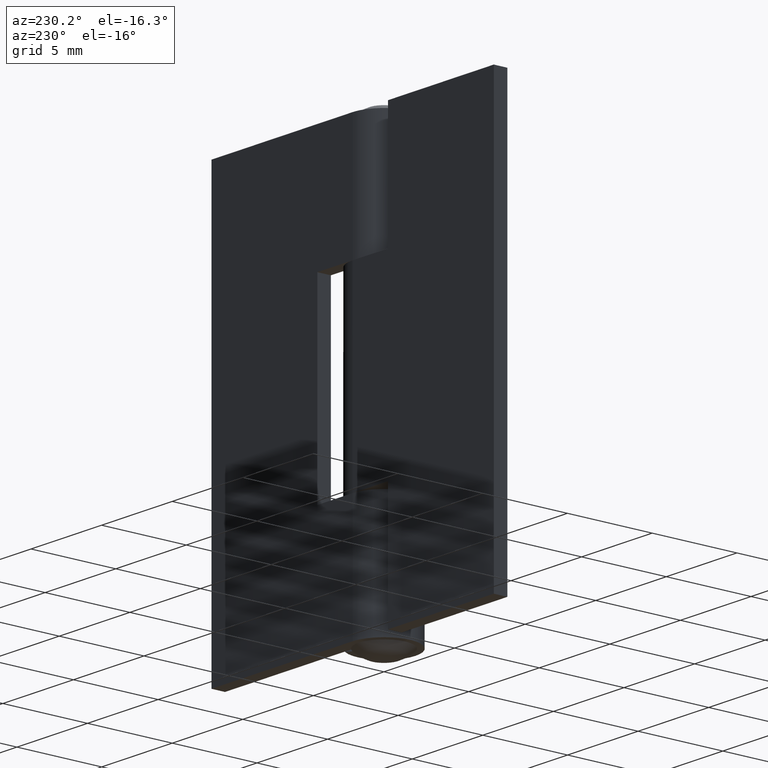
[diagram: clean part render]
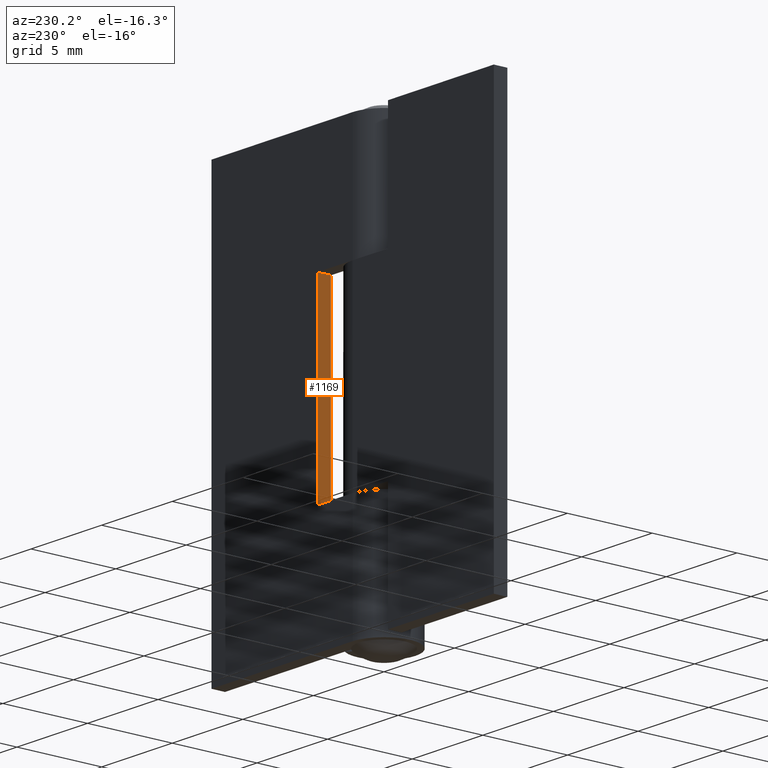
[diagram: same view with one face highlighted and labeled with its STEP entity id]
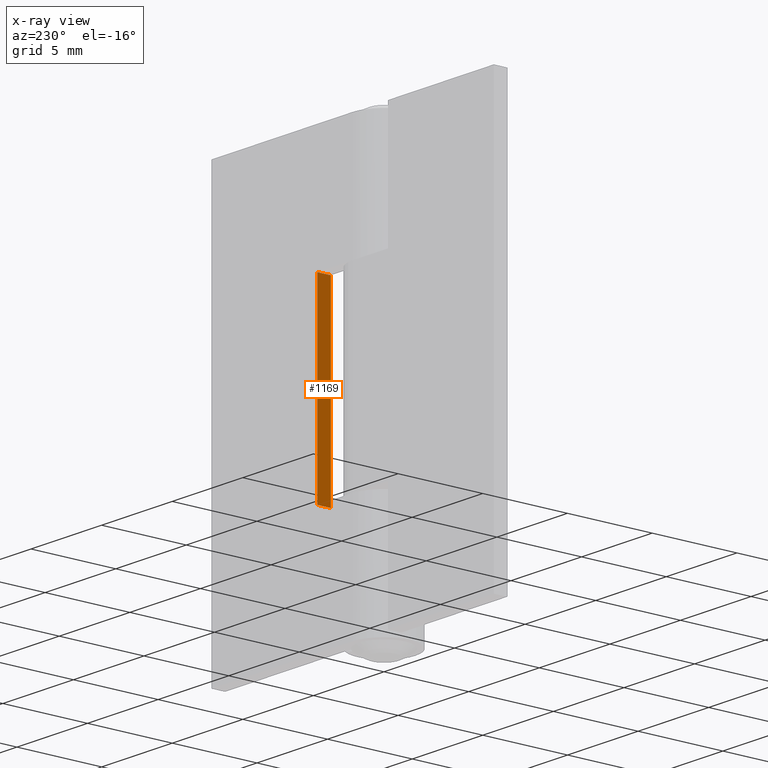
[diagram: x-ray of the same camera — body ghosted, the highlighted face saturated]
A machine part, auxiliary view. The second image highlights one B-rep face of the part: STEP entity #1169.
The next image is the same camera in x-ray: the body ghosted, the highlighted face saturated — about 0% of this face is hidden behind the body in this view.
In plain terms, the highlighted face is a freeform B-spline surface patch.
Its self-contained STEP definition (entity closure, byte-faithful):
#949=CARTESIAN_POINT('',(2.500000000000000,1.050000999999966,7.000000000000110));
#950=VERTEX_POINT('',#949);
#951=CARTESIAN_POINT('',(2.500000000000000,1.850000000000000,7.000000000000110));
#952=VERTEX_POINT('',#951);
#953=CARTESIAN_POINT('',(2.500000000000000,1.050000999999966,7.000000000000110));
#954=CARTESIAN_POINT('',(2.500000000000000,1.850000000000000,7.000000000000110));
#955=QUASI_UNIFORM_CURVE('',1,(#953,#954),.UNSPECIFIED.,.F.,.U.);
#956=EDGE_CURVE('',#950,#952,#955,.T.);
#1128=CARTESIAN_POINT('',(2.500000000000000,1.850000000000000,18.0));
#1129=VERTEX_POINT('',#1128);
#1135=CARTESIAN_POINT('',(2.500000000000000,1.050000999999966,18.0));
#1136=VERTEX_POINT('',#1135);
#1137=CARTESIAN_POINT('',(2.500000000000000,1.050000999999966,18.0));
#1138=CARTESIAN_POINT('',(2.500000000000000,1.850000000000000,18.0));
#1139=QUASI_UNIFORM_CURVE('',1,(#1137,#1138),.UNSPECIFIED.,.F.,.U.);
#1140=EDGE_CURVE('',#1136,#1129,#1139,.T.);
#1150=CARTESIAN_POINT('',(2.500000000000000,1.010041051500518,18.549449978679860));
#1151=CARTESIAN_POINT('',(2.500000000000000,1.010041051500518,6.450549726277258));
#1152=CARTESIAN_POINT('',(2.500000000000000,1.889959969957094,18.549449978679860));
#1153=CARTESIAN_POINT('',(2.500000000000000,1.889959969957094,6.450549726277258));
#1154=B_SPLINE_SURFACE_WITH_KNOTS('',1,1,((#1150,#1152),(#1151,#1153)),.UNSPECIFIED.,.F.,.F.,.U.,(2,2),(2,2),(0.0,12.098900252402601),(0.041708334948495,0.958291687403247),.UNSPECIFIED.);
#1155=ORIENTED_EDGE('',*,*,#1140,.T.);
#1156=CARTESIAN_POINT('',(2.500000000000000,1.850000000000000,18.0));
#1157=CARTESIAN_POINT('',(2.500000000000000,1.850000000000000,7.000000000000110));
#1158=QUASI_UNIFORM_CURVE('',1,(#1156,#1157),.UNSPECIFIED.,.F.,.U.);
#1159=EDGE_CURVE('',#1129,#952,#1158,.T.);
#1160=ORIENTED_EDGE('',*,*,#1159,.T.);
#1161=ORIENTED_EDGE('',*,*,#956,.F.);
#1162=CARTESIAN_POINT('',(2.500000000000000,1.050000999999966,18.0));
#1163=CARTESIAN_POINT('',(2.500000000000000,1.050000999999966,7.000000000000110));
#1164=QUASI_UNIFORM_CURVE('',1,(#1162,#1163),.UNSPECIFIED.,.F.,.U.);
#1165=EDGE_CURVE('',#1136,#950,#1164,.T.);
#1166=ORIENTED_EDGE('',*,*,#1165,.F.);
#1167=EDGE_LOOP('',(#1155,#1160,#1161,#1166));
#1168=FACE_OUTER_BOUND('',#1167,.T.);
#1169=ADVANCED_FACE('',(#1168),#1154,.F.);